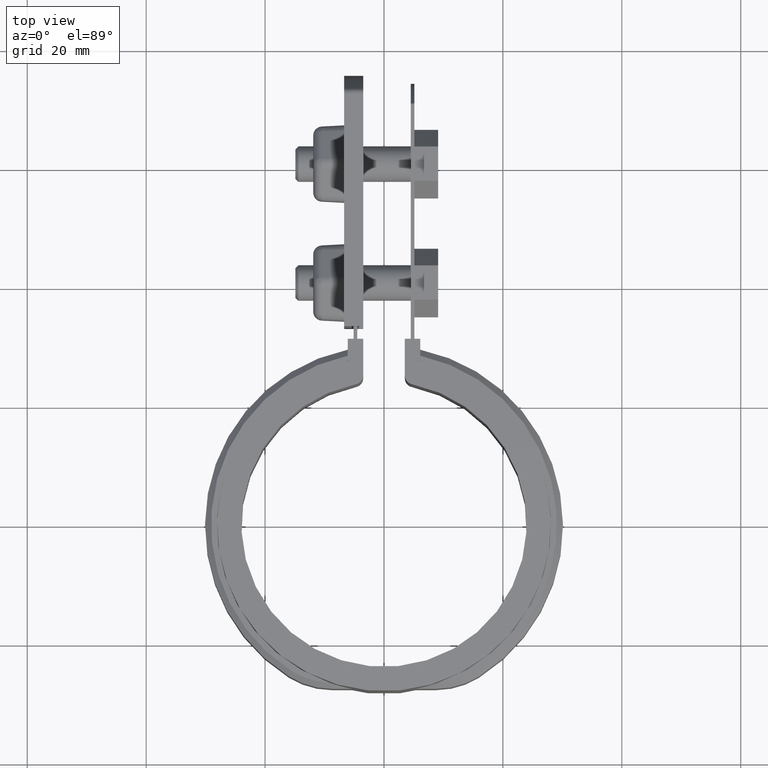
[diagram: clean part render]
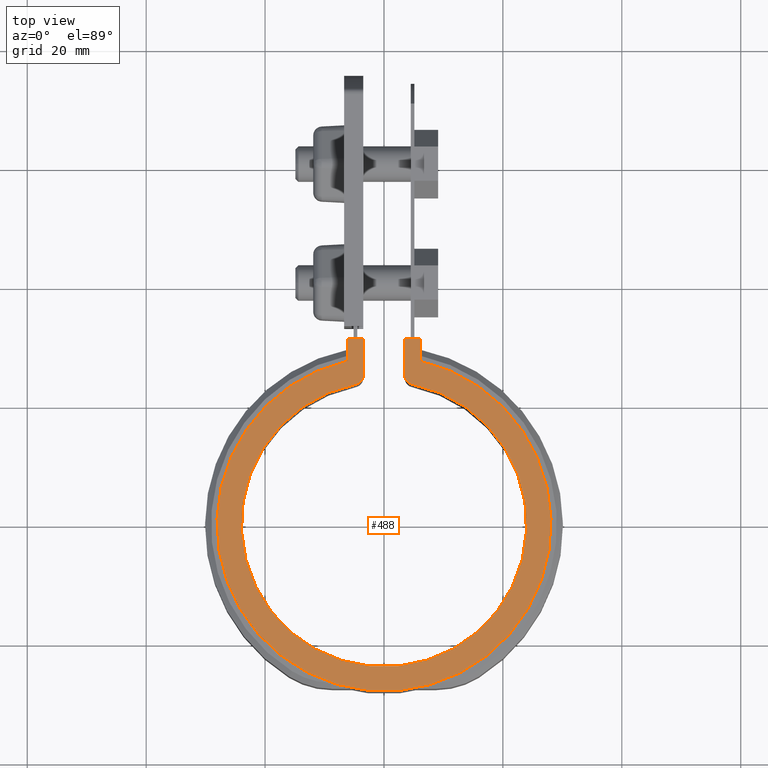
[diagram: same view with one face highlighted and labeled with its STEP entity id]
A machine part, top view. The second image highlights one B-rep face of the part: STEP entity #488.
In plain terms, the highlighted planar face has unit normal (0, 0, -1).
Its self-contained STEP definition (entity closure, byte-faithful):
#488 = ADVANCED_FACE( '', ( #988 ), #989, .F. );
#988 = FACE_OUTER_BOUND( '', #2312, .T. );
#989 = PLANE( '', #2313 );
#2312 = EDGE_LOOP( '', ( #5463, #5464, #5465, #5466, #5467, #5468, #5469, #5470, #5471, #5472 ) );
#2313 = AXIS2_PLACEMENT_3D( '', #5473, #5474, #5475 );
#5463 = ORIENTED_EDGE( '', *, *, #7600, .F. );
#5464 = ORIENTED_EDGE( '', *, *, #7591, .T. );
#5465 = ORIENTED_EDGE( '', *, *, #7777, .T. );
#5466 = ORIENTED_EDGE( '', *, *, #7536, .T. );
#5467 = ORIENTED_EDGE( '', *, *, #7629, .T. );
#5468 = ORIENTED_EDGE( '', *, *, #7657, .T. );
#5469 = ORIENTED_EDGE( '', *, *, #7621, .T. );
#5470 = ORIENTED_EDGE( '', *, *, #7726, .T. );
#5471 = ORIENTED_EDGE( '', *, *, #7661, .T. );
#5472 = ORIENTED_EDGE( '', *, *, #7597, .T. );
#5473 = CARTESIAN_POINT( '', ( -6.50000000000000, 26.7207784317748, 1.50000000000000 ) );
#5474 = DIRECTION( '', ( 0.000000000000000, 0.000000000000000, -1.00000000000000 ) );
#5475 = DIRECTION( '', ( 0.000000000000000, -1.00000000000000, 0.000000000000000 ) );
#7536 = EDGE_CURVE( '', #8620, #8621, #8622, .F. );
#7591 = EDGE_CURVE( '', #8724, #8725, #8726, .F. );
#7597 = EDGE_CURVE( '', #8737, #8735, #8738, .F. );
#7600 = EDGE_CURVE( '', #8724, #8735, #8741, .F. );
#7621 = EDGE_CURVE( '', #8778, #8776, #8779, .F. );
#7629 = EDGE_CURVE( '', #8621, #8792, #8794, .F. );
#7657 = EDGE_CURVE( '', #8792, #8778, #8837, .F. );
#7661 = EDGE_CURVE( '', #8843, #8737, #8844, .F. );
#7726 = EDGE_CURVE( '', #8776, #8843, #8956, .F. );
#7777 = EDGE_CURVE( '', #8725, #8620, #9021, .F. );
#8620 = VERTEX_POINT( '', #11098 );
#8621 = VERTEX_POINT( '', #11099 );
#8622 = LINE( '', #11100, #11101 );
#8724 = VERTEX_POINT( '', #11526 );
#8725 = VERTEX_POINT( '', #11527 );
#8726 = CIRCLE( '', #11528, 1.50000000000000 );
#8735 = VERTEX_POINT( '', #11539 );
#8737 = VERTEX_POINT( '', #11542 );
#8738 = CIRCLE( '', #11543, 1.50000000000000 );
#8741 = CIRCLE( '', #11547, 24.0000000000000 );
#8776 = VERTEX_POINT( '', #11604 );
#8778 = VERTEX_POINT( '', #11607 );
#8779 = LINE( '', #11608, #11609 );
#8792 = VERTEX_POINT( '', #11632 );
#8794 = LINE( '', #11635, #11636 );
#8837 = CIRCLE( '', #11707, 28.0950000000000 );
#8843 = VERTEX_POINT( '', #11716 );
#8844 = LINE( '', #11717, #11718 );
#8956 = LINE( '', #12200, #12201 );
#9021 = LINE( '', #12440, #12441 );
#11098 = CARTESIAN_POINT( '', ( -3.49999999999999, 31.1900000000000, 1.50000000000000 ) );
#11099 = CARTESIAN_POINT( '', ( -6.10000000000000, 31.1900000000000, 1.50000000000000 ) );
#11100 = CARTESIAN_POINT( '', ( -6.50000000000000, 31.1900000000000, 1.50000000000000 ) );
#11101 = VECTOR( '', #14020, 1000.00000000000 );
#11526 = CARTESIAN_POINT( '', ( -4.70588235294117, 23.5341171765647, 1.50000000000000 ) );
#11527 = CARTESIAN_POINT( '', ( -3.49999999999999, 25.0049995001000, 1.50000000000000 ) );
#11528 = AXIS2_PLACEMENT_3D( '', #14084, #14085, #14086 );
#11539 = CARTESIAN_POINT( '', ( 4.70588235294118, 23.5341171765647, 1.50000000000000 ) );
#11542 = CARTESIAN_POINT( '', ( 3.50000000000000, 25.0049995001000, 1.50000000000000 ) );
#11543 = AXIS2_PLACEMENT_3D( '', #14096, #14097, #14098 );
#11547 = AXIS2_PLACEMENT_3D( '', #14103, #14104, #14105 );
#11604 = CARTESIAN_POINT( '', ( 6.10000000000001, 31.1900000000000, 1.50000000000000 ) );
#11607 = CARTESIAN_POINT( '', ( 6.10000000000001, 27.4247885133140, 1.50000000000000 ) );
#11608 = CARTESIAN_POINT( '', ( 6.10000000000001, 26.7207784317748, 1.50000000000000 ) );
#11609 = VECTOR( '', #14133, 1000.00000000000 );
#11632 = CARTESIAN_POINT( '', ( -6.10000000000000, 27.4247885133140, 1.50000000000000 ) );
#11635 = CARTESIAN_POINT( '', ( -6.10000000000000, 26.7207784317748, 1.50000000000000 ) );
#11636 = VECTOR( '', #14139, 1000.00000000000 );
#11707 = AXIS2_PLACEMENT_3D( '', #14186, #14187, #14188 );
#11716 = CARTESIAN_POINT( '', ( 3.50000000000000, 31.1900000000000, 1.50000000000000 ) );
#11717 = CARTESIAN_POINT( '', ( 3.50000000000000, 26.7207784317748, 1.50000000000000 ) );
#11718 = VECTOR( '', #14192, 1000.00000000000 );
#12200 = CARTESIAN_POINT( '', ( -6.50000000000000, 31.1900000000000, 1.50000000000000 ) );
#12201 = VECTOR( '', #14251, 1000.00000000000 );
#12440 = CARTESIAN_POINT( '', ( -3.49999999999999, 26.7207784317748, 1.50000000000000 ) );
#12441 = VECTOR( '', #14293, 1000.00000000000 );
#14020 = DIRECTION( '', ( 1.00000000000000, 0.000000000000000, 0.000000000000000 ) );
#14084 = CARTESIAN_POINT( '', ( -4.99999999999999, 25.0049995001000, 1.50000000000000 ) );
#14085 = DIRECTION( '', ( 0.000000000000000, 0.000000000000000, -1.00000000000000 ) );
#14086 = DIRECTION( '', ( -1.00000000000000, 0.000000000000000, 0.000000000000000 ) );
#14096 = CARTESIAN_POINT( '', ( 5.00000000000000, 25.0049995001000, 1.50000000000000 ) );
#14097 = DIRECTION( '', ( 0.000000000000000, 0.000000000000000, -1.00000000000000 ) );
#14098 = DIRECTION( '', ( -1.00000000000000, 0.000000000000000, 0.000000000000000 ) );
#14103 = CARTESIAN_POINT( '', ( 6.93889390390723E-015, 0.000000000000000, 1.50000000000000 ) );
#14104 = DIRECTION( '', ( 0.000000000000000, 0.000000000000000, -1.00000000000000 ) );
#14105 = DIRECTION( '', ( -1.00000000000000, 0.000000000000000, 0.000000000000000 ) );
#14133 = DIRECTION( '', ( -6.07153216591882E-017, -1.00000000000000, 0.000000000000000 ) );
#14139 = DIRECTION( '', ( 6.07153216591882E-017, 1.00000000000000, 0.000000000000000 ) );
#14186 = CARTESIAN_POINT( '', ( 0.000000000000000, 0.000000000000000, 1.50000000000000 ) );
#14187 = DIRECTION( '', ( 0.000000000000000, 0.000000000000000, -1.00000000000000 ) );
#14188 = DIRECTION( '', ( -1.00000000000000, 0.000000000000000, 0.000000000000000 ) );
#14192 = DIRECTION( '', ( 6.07153216591882E-017, 1.00000000000000, 0.000000000000000 ) );
#14251 = DIRECTION( '', ( 1.00000000000000, 0.000000000000000, 0.000000000000000 ) );
#14293 = DIRECTION( '', ( -6.07153216591882E-017, -1.00000000000000, 0.000000000000000 ) );